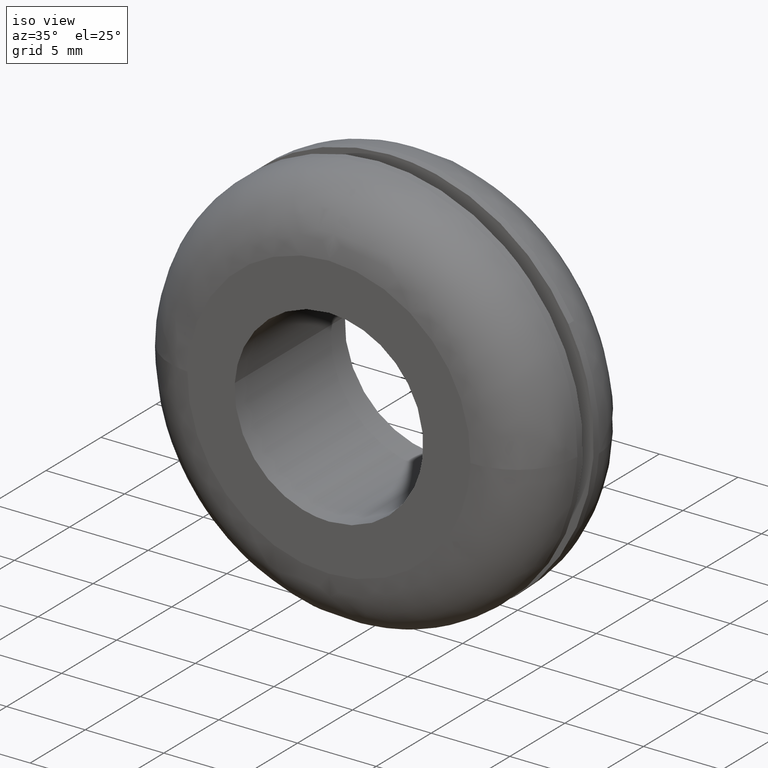
[diagram: clean part render]
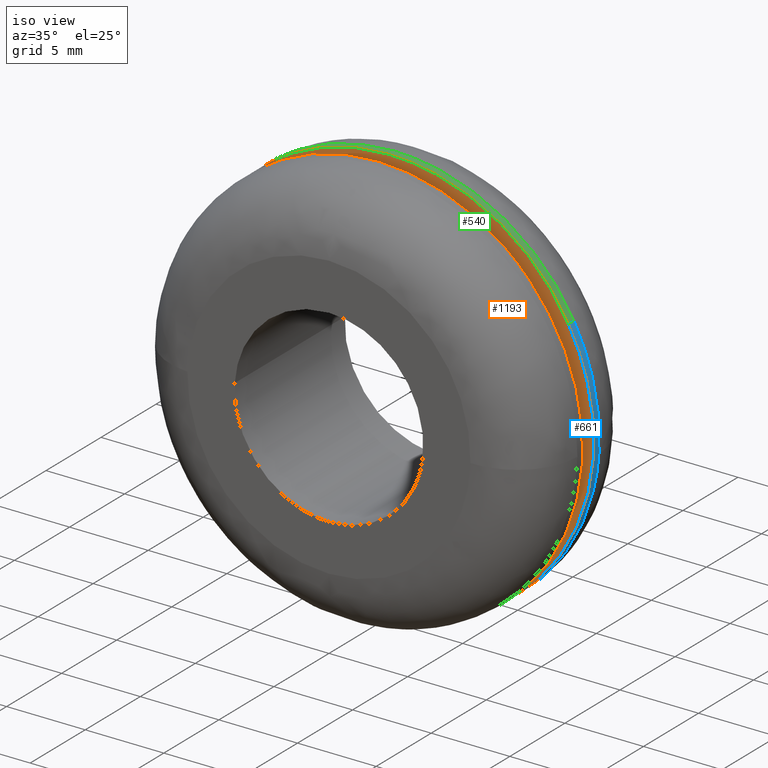
[diagram: same view with three faces highlighted in distinct colors, each labeled with its STEP entity id]
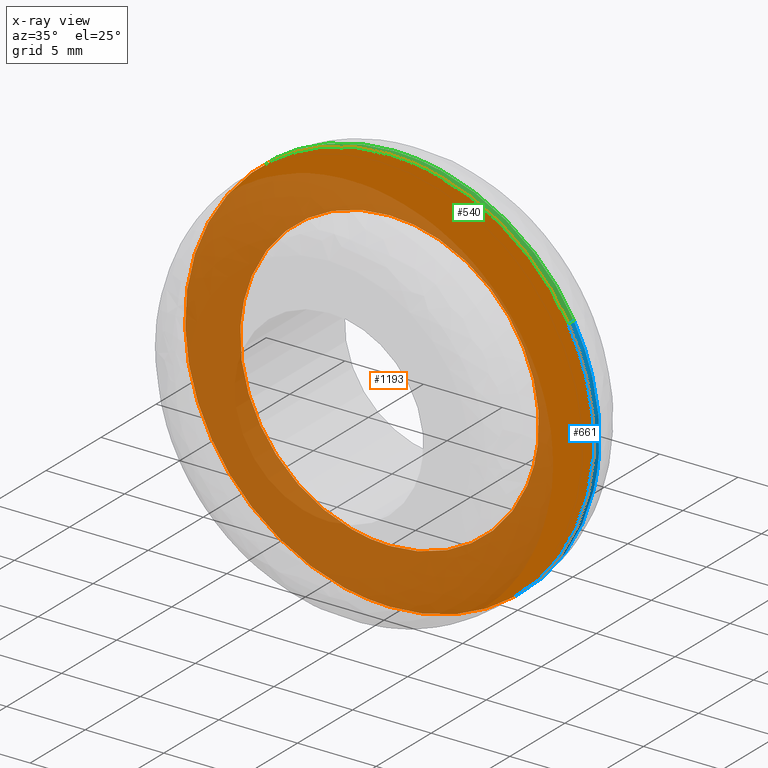
[diagram: x-ray of the same camera — body ghosted, the three highlighted faces saturated]
A machine part, iso view with three faces highlighted in distinct colors.
The next image is the same camera in x-ray (body ghosted, the three faces saturated) — at least one of them is partly hidden behind the body in this view.
Their STEP definitions:

[orange] entity #1193 — the highlighted face is a freeform B-spline surface patch.
#301=CARTESIAN_POINT('',(9.433591126934383,5.500000000000000,-1.121319958707903));
#302=VERTEX_POINT('',#301);
#308=CARTESIAN_POINT('',(0.0,5.500000000000000,9.500000000000000));
#309=VERTEX_POINT('',#308);
#310=CARTESIAN_POINT('',(9.433591126934383,5.500000000000000,-1.121319958707903));
#311=CARTESIAN_POINT('',(9.500000000000000,5.500000000000000,-0.562626473568023));
#312=CARTESIAN_POINT('',(9.500000000000000,5.500000000000000,-2.449213E-016));
#313=CARTESIAN_POINT('',(9.500000000000000,5.500000000000001,9.500000000000000));
#314=CARTESIAN_POINT('',(0.0,5.500000000000000,9.500000000000000));
#322=(BOUNDED_CURVE()B_SPLINE_CURVE(2,(#310,#311,#312,#313,#314),.UNSPECIFIED.,.F.,.U.)B_SPLINE_CURVE_WITH_KNOTS((3,2,3),(0.229562567937482,0.250000000000000,0.500000000000000),.UNSPECIFIED.)CURVE()GEOMETRIC_REPRESENTATION_ITEM()RATIONAL_B_SPLINE_CURVE((0.956026939258635,0.976056058955711,1.0,0.707106781186548,1.0))REPRESENTATION_ITEM(''));
#323=EDGE_CURVE('',#302,#309,#322,.T.);
#325=CARTESIAN_POINT('',(-9.482281025216306,5.500000000000000,0.579953928144975));
#326=VERTEX_POINT('',#325);
#327=CARTESIAN_POINT('',(0.0,5.500000000000000,9.500000000000000));
#328=CARTESIAN_POINT('',(-8.936714431606257,5.499999999999999,9.500000000000000));
#329=CARTESIAN_POINT('',(-9.482281025216306,5.500000000000000,0.579953928144975));
#337=(BOUNDED_CURVE()B_SPLINE_CURVE(2,(#327,#328,#329),.UNSPECIFIED.,.F.,.U.)B_SPLINE_CURVE_WITH_KNOTS((3,3),(0.500000000000000,0.739333093212004),.UNSPECIFIED.)CURVE()GEOMETRIC_REPRESENTATION_ITEM()RATIONAL_B_SPLINE_CURVE((1.0,0.719603839842224,0.976072322367080))REPRESENTATION_ITEM(''));
#338=EDGE_CURVE('',#309,#326,#337,.T.);
#412=CARTESIAN_POINT('',(0.0,5.500000000000000,-9.500000000000000));
#413=VERTEX_POINT('',#412);
#414=CARTESIAN_POINT('',(-9.482281025216306,5.500000000000000,0.579953928144975));
#415=CARTESIAN_POINT('',(-9.500000000000000,5.500000000000000,0.290247642528265));
#416=CARTESIAN_POINT('',(-9.500000000000000,5.500000000000000,-2.449213E-016));
#417=CARTESIAN_POINT('',(-9.500000000000000,5.500000000000001,-9.500000000000000));
#418=CARTESIAN_POINT('',(0.0,5.500000000000000,-9.500000000000000));
#426=(BOUNDED_CURVE()B_SPLINE_CURVE(2,(#414,#415,#416,#417,#418),.UNSPECIFIED.,.F.,.U.)B_SPLINE_CURVE_WITH_KNOTS((3,2,3),(0.739333093212004,0.750000000000000,1.0),.UNSPECIFIED.)CURVE()GEOMETRIC_REPRESENTATION_ITEM()RATIONAL_B_SPLINE_CURVE((0.976072322367080,0.987502941344323,1.0,0.707106781186548,1.0))REPRESENTATION_ITEM(''));
#427=EDGE_CURVE('',#326,#413,#426,.T.);
#429=CARTESIAN_POINT('',(0.0,5.500000000000000,-9.500000000000000));
#430=CARTESIAN_POINT('',(8.437662743830138,5.499999999999999,-9.499999999999998));
#431=CARTESIAN_POINT('',(9.433591126934383,5.500000000000000,-1.121319958707903));
#439=(BOUNDED_CURVE()B_SPLINE_CURVE(2,(#429,#430,#431),.UNSPECIFIED.,.F.,.U.)B_SPLINE_CURVE_WITH_KNOTS((3,3),(0.0,0.229562567937482),.UNSPECIFIED.)CURVE()GEOMETRIC_REPRESENTATION_ITEM()RATIONAL_B_SPLINE_CURVE((1.0,0.731050722230837,0.956026939258634))REPRESENTATION_ITEM(''));
#440=EDGE_CURVE('',#413,#302,#439,.T.);
#496=CARTESIAN_POINT('',(-8.782672184095720,5.500000000000000,9.584605850357686));
#497=VERTEX_POINT('',#496);
#503=CARTESIAN_POINT('',(0.0,5.500000000000000,13.0));
#504=VERTEX_POINT('',#503);
#505=CARTESIAN_POINT('',(0.0,5.500000000000000,13.0));
#506=CARTESIAN_POINT('',(-5.055422710082569,5.500000000000000,13.000000000000002));
#507=CARTESIAN_POINT('',(-8.782672184095720,5.500000000000000,9.584605850357686));
#515=(BOUNDED_CURVE()B_SPLINE_CURVE(2,(#505,#506,#507),.UNSPECIFIED.,.F.,.U.)B_SPLINE_CURVE_WITH_KNOTS((3,3),(0.500000000000000,0.618415192864190),.UNSPECIFIED.)CURVE()GEOMETRIC_REPRESENTATION_ITEM()RATIONAL_B_SPLINE_CURVE((1.0,0.861267972022367,0.853959782840026))REPRESENTATION_ITEM(''));
#516=EDGE_CURVE('',#504,#497,#515,.T.);
#518=CARTESIAN_POINT('',(11.374304629129410,5.499999999999999,6.294854581621429));
#519=VERTEX_POINT('',#518);
#520=CARTESIAN_POINT('',(11.374304629129410,5.499999999999999,6.294854581621429));
#521=CARTESIAN_POINT('',(7.663491816078668,5.500000000000000,13.000000000000002));
#522=CARTESIAN_POINT('',(0.0,5.500000000000000,13.0));
#530=(BOUNDED_CURVE()B_SPLINE_CURVE(2,(#520,#521,#522),.UNSPECIFIED.,.F.,.U.)B_SPLINE_CURVE_WITH_KNOTS((3,3),(0.332484262755645,0.500000000000000),.UNSPECIFIED.)CURVE()GEOMETRIC_REPRESENTATION_ITEM()RATIONAL_B_SPLINE_CURVE((0.870495158345373,0.803743106066369,1.0))REPRESENTATION_ITEM(''));
#531=EDGE_CURVE('',#519,#504,#530,.T.);
#581=CARTESIAN_POINT('',(0.0,5.500000000000000,-13.0));
#582=VERTEX_POINT('',#581);
#583=CARTESIAN_POINT('',(0.0,5.500000000000000,-13.0));
#584=CARTESIAN_POINT('',(13.0,5.500000000000000,-13.0));
#585=CARTESIAN_POINT('',(13.0,5.500000000000000,-2.449213E-016));
#586=CARTESIAN_POINT('',(13.0,5.499999999999999,3.357351555509877));
#587=CARTESIAN_POINT('',(11.374304629129410,5.499999999999999,6.294854581621429));
#595=(BOUNDED_CURVE()B_SPLINE_CURVE(2,(#583,#584,#585,#586,#587),.UNSPECIFIED.,.F.,.U.)B_SPLINE_CURVE_WITH_KNOTS((3,2,3),(0.0,0.250000000000000,0.332484262755645),.UNSPECIFIED.)CURVE()GEOMETRIC_REPRESENTATION_ITEM()RATIONAL_B_SPLINE_CURVE((1.0,0.707106781186547,1.0,0.903363675120178,0.870495158345373))REPRESENTATION_ITEM(''));
#596=EDGE_CURVE('',#582,#519,#595,.T.);
#598=CARTESIAN_POINT('',(-8.782672184095720,5.500000000000000,9.584605850357686));
#599=CARTESIAN_POINT('',(-13.000000000000002,5.499999999999999,5.720137735199792));
#600=CARTESIAN_POINT('',(-13.0,5.500000000000000,-2.449213E-016));
#601=CARTESIAN_POINT('',(-13.0,5.500000000000000,-13.0));
#602=CARTESIAN_POINT('',(0.0,5.500000000000000,-13.0));
#610=(BOUNDED_CURVE()B_SPLINE_CURVE(2,(#598,#599,#600,#601,#602),.UNSPECIFIED.,.F.,.U.)B_SPLINE_CURVE_WITH_KNOTS((3,2,3),(0.618415192864190,0.750000000000000,1.0),.UNSPECIFIED.)CURVE()GEOMETRIC_REPRESENTATION_ITEM()RATIONAL_B_SPLINE_CURVE((0.853959782840026,0.845838809164181,1.0,0.707106781186547,1.0))REPRESENTATION_ITEM(''));
#611=EDGE_CURVE('',#497,#582,#610,.T.);
#1176=CARTESIAN_POINT('',(-14.292782182057501,5.500000000000000,-14.298699949606950));
#1177=CARTESIAN_POINT('',(-14.292782182057501,5.500000000000000,14.298700646981301));
#1178=CARTESIAN_POINT('',(14.295413142998809,5.500000000000000,-14.298699949606950));
#1179=CARTESIAN_POINT('',(14.295413142998809,5.500000000000000,14.298700646981301));
#1180=B_SPLINE_SURFACE_WITH_KNOTS('',1,1,((#1176,#1178),(#1177,#1179)),.UNSPECIFIED.,.F.,.F.,.U.,(2,2),(2,2),(0.0,28.597400596588251),(0.0,28.588195325056311),.UNSPECIFIED.);
#1181=ORIENTED_EDGE('',*,*,#596,.T.);
#1182=ORIENTED_EDGE('',*,*,#531,.T.);
#1183=ORIENTED_EDGE('',*,*,#516,.T.);
#1184=ORIENTED_EDGE('',*,*,#611,.T.);
#1185=EDGE_LOOP('',(#1181,#1182,#1183,#1184));
#1186=FACE_OUTER_BOUND('',#1185,.T.);
#1187=ORIENTED_EDGE('',*,*,#338,.F.);
#1188=ORIENTED_EDGE('',*,*,#323,.F.);
#1189=ORIENTED_EDGE('',*,*,#440,.F.);
#1190=ORIENTED_EDGE('',*,*,#427,.F.);
#1191=EDGE_LOOP('',(#1187,#1188,#1189,#1190));
#1192=FACE_BOUND('',#1191,.T.);
#1193=ADVANCED_FACE('',(#1186,#1192),#1180,.F.);

[blue] entity #661 — the highlighted face is a freeform B-spline surface patch.
#464=CARTESIAN_POINT('',(11.374304720858300,5.999994954303111,6.294854415866223));
#465=VERTEX_POINT('',#464);
#481=CARTESIAN_POINT('',(-8.782672170068333,5.999996391977601,9.584605863207582));
#482=VERTEX_POINT('',#481);
#496=CARTESIAN_POINT('',(-8.782672184095720,5.500000000000000,9.584605850357686));
#497=VERTEX_POINT('',#496);
#498=CARTESIAN_POINT('',(-8.782672170068333,5.999996391977601,9.584605863207582));
#499=CARTESIAN_POINT('',(-8.782672184095720,5.500000000000000,9.584605850357686));
#500=QUASI_UNIFORM_CURVE('',1,(#498,#499),.UNSPECIFIED.,.F.,.U.);
#501=EDGE_CURVE('',#482,#497,#500,.T.);
#518=CARTESIAN_POINT('',(11.374304629129410,5.499999999999999,6.294854581621429));
#519=VERTEX_POINT('',#518);
#533=CARTESIAN_POINT('',(11.374304720858300,5.999994954303111,6.294854415866223));
#534=CARTESIAN_POINT('',(11.374304629129410,5.499999999999999,6.294854581621429));
#535=QUASI_UNIFORM_CURVE('',1,(#533,#534),.UNSPECIFIED.,.F.,.U.);
#536=EDGE_CURVE('',#465,#519,#535,.T.);
#541=CARTESIAN_POINT('',(-8.782672699003580,6.012500000000000,9.584605378531608));
#542=CARTESIAN_POINT('',(-18.367278077535193,6.012499999999999,0.801932679528027));
#543=CARTESIAN_POINT('',(-9.584605378531608,6.012500000000000,-8.782672699003580));
#544=CARTESIAN_POINT('',(-0.801932679528027,6.012499999999999,-18.367278077535193));
#545=CARTESIAN_POINT('',(8.782672699003580,6.012500000000000,-9.584605378531608));
#546=CARTESIAN_POINT('',(16.333327816270327,6.012500000000000,-2.665704710325894));
#547=CARTESIAN_POINT('',(11.374303556760694,6.012499999999999,6.294856519306929));
#548=CARTESIAN_POINT('',(-8.782672699003580,5.487187499999999,9.584605378531608));
#549=CARTESIAN_POINT('',(-18.367278077535193,5.487187500000000,0.801932679528027));
#550=CARTESIAN_POINT('',(-9.584605378531608,5.487187499999999,-8.782672699003580));
#551=CARTESIAN_POINT('',(-0.801932679528027,5.487187500000000,-18.367278077535193));
#552=CARTESIAN_POINT('',(8.782672699003580,5.487187499999999,-9.584605378531608));
#553=CARTESIAN_POINT('',(16.333327816270327,5.487187499999999,-2.665704710325894));
#554=CARTESIAN_POINT('',(11.374303556760694,5.487187499999998,6.294856519306929));
#562=(BOUNDED_SURFACE()B_SPLINE_SURFACE(2,1,((#541,#548),(#542,#549),(#543,#550),(#544,#551),(#545,#552),(#546,#553),(#547,#554)),.UNSPECIFIED.,.F.,.F.,.U.)B_SPLINE_SURFACE_WITH_KNOTS((3,2,2,3),(2,2),(0.0,21.539105243400940,43.078210486801872,61.171058891258653),(0.0,1.0),.UNSPECIFIED.)GEOMETRIC_REPRESENTATION_ITEM()RATIONAL_B_SPLINE_SURFACE(((1.0,1.0),(0.707106781186548,0.707106781186548),(1.0,1.0),(0.707106781186548,0.707106781186548),(1.0,1.0),(0.753969696196700,0.753969696196700),(0.921270302782944,0.921270302782944)))REPRESENTATION_ITEM('')SURFACE());
#563=CARTESIAN_POINT('',(12.968353783879341,5.999992422170896,-0.906531927605974));
#564=VERTEX_POINT('',#563);
#565=CARTESIAN_POINT('',(12.968353783879333,5.999992422170896,-0.906531927605974));
#566=CARTESIAN_POINT('',(12.999999999985908,5.999992545515316,-0.453818334305598));
#567=CARTESIAN_POINT('',(12.999999999986160,5.999992677782925,9.687914E-013));
#568=CARTESIAN_POINT('',(12.999999999988002,5.999993656299678,3.357351454468332));
#569=CARTESIAN_POINT('',(11.374304720858298,5.999994954303111,6.294854415866223));
#577=(BOUNDED_CURVE()B_SPLINE_CURVE(2,(#565,#566,#567,#568,#569),.UNSPECIFIED.,.F.,.U.)B_SPLINE_CURVE_WITH_KNOTS((3,2,3),(0.237833691082226,0.250000000000000,0.332484260513103),.UNSPECIFIED.)CURVE()GEOMETRIC_REPRESENTATION_ITEM()RATIONAL_B_SPLINE_CURVE((0.972879886004556,0.985746282479977,1.0,0.903363677747479,0.870495160132599))REPRESENTATION_ITEM(''));
#578=EDGE_CURVE('',#564,#465,#577,.T.);
#579=ORIENTED_EDGE('',*,*,#578,.T.);
#580=ORIENTED_EDGE('',*,*,#536,.T.);
#581=CARTESIAN_POINT('',(0.0,5.500000000000000,-13.0));
#582=VERTEX_POINT('',#581);
#583=CARTESIAN_POINT('',(0.0,5.500000000000000,-13.0));
#584=CARTESIAN_POINT('',(13.0,5.500000000000000,-13.0));
#585=CARTESIAN_POINT('',(13.0,5.500000000000000,-2.449213E-016));
#586=CARTESIAN_POINT('',(13.0,5.499999999999999,3.357351555509877));
#587=CARTESIAN_POINT('',(11.374304629129410,5.499999999999999,6.294854581621429));
#595=(BOUNDED_CURVE()B_SPLINE_CURVE(2,(#583,#584,#585,#586,#587),.UNSPECIFIED.,.F.,.U.)B_SPLINE_CURVE_WITH_KNOTS((3,2,3),(0.0,0.250000000000000,0.332484262755645),.UNSPECIFIED.)CURVE()GEOMETRIC_REPRESENTATION_ITEM()RATIONAL_B_SPLINE_CURVE((1.0,0.707106781186547,1.0,0.903363675120178,0.870495158345373))REPRESENTATION_ITEM(''));
#596=EDGE_CURVE('',#582,#519,#595,.T.);
#597=ORIENTED_EDGE('',*,*,#596,.F.);
#598=CARTESIAN_POINT('',(-8.782672184095720,5.500000000000000,9.584605850357686));
#599=CARTESIAN_POINT('',(-13.000000000000002,5.499999999999999,5.720137735199792));
#600=CARTESIAN_POINT('',(-13.0,5.500000000000000,-2.449213E-016));
#601=CARTESIAN_POINT('',(-13.0,5.500000000000000,-13.0));
#602=CARTESIAN_POINT('',(0.0,5.500000000000000,-13.0));
#610=(BOUNDED_CURVE()B_SPLINE_CURVE(2,(#598,#599,#600,#601,#602),.UNSPECIFIED.,.F.,.U.)B_SPLINE_CURVE_WITH_KNOTS((3,2,3),(0.618415192864190,0.750000000000000,1.0),.UNSPECIFIED.)CURVE()GEOMETRIC_REPRESENTATION_ITEM()RATIONAL_B_SPLINE_CURVE((0.853959782840026,0.845838809164181,1.0,0.707106781186547,1.0))REPRESENTATION_ITEM(''));
#611=EDGE_CURVE('',#497,#582,#610,.T.);
#612=ORIENTED_EDGE('',*,*,#611,.F.);
#613=ORIENTED_EDGE('',*,*,#501,.F.);
#614=CARTESIAN_POINT('',(-12.998973683911879,5.999992378941576,0.163349822507249));
#615=VERTEX_POINT('',#614);
#616=CARTESIAN_POINT('',(-8.782672170068333,5.999996391977600,9.584605863207582));
#617=CARTESIAN_POINT('',(-12.928319674163452,5.999994047958732,5.785820660463391));
#618=CARTESIAN_POINT('',(-12.998973683911885,5.999992378941576,0.163349822507249));
#626=(BOUNDED_CURVE()B_SPLINE_CURVE(2,(#616,#617,#618),.UNSPECIFIED.,.F.,.U.)B_SPLINE_CURVE_WITH_KNOTS((3,3),(0.618415192422449,0.747784413572241),.UNSPECIFIED.)CURVE()GEOMETRIC_REPRESENTATION_ITEM()RATIONAL_B_SPLINE_CURVE((0.853959782894552,0.845975547231104,0.994854566429976))REPRESENTATION_ITEM(''));
#627=EDGE_CURVE('',#482,#615,#626,.T.);
#628=ORIENTED_EDGE('',*,*,#627,.T.);
#629=CARTESIAN_POINT('',(0.0,6.0,-13.0));
#630=VERTEX_POINT('',#629);
#631=CARTESIAN_POINT('',(-12.998973683911885,5.999992378941576,0.163349822507249));
#632=CARTESIAN_POINT('',(-12.999999999982622,5.999992402583911,0.081678135391322));
#633=CARTESIAN_POINT('',(-12.999999999982681,5.999992426525213,-2.182001E-013));
#634=CARTESIAN_POINT('',(-12.999999999991394,5.999996237054426,-13.000000000000108));
#635=CARTESIAN_POINT('',(0.0,6.0,-13.0));
#643=(BOUNDED_CURVE()B_SPLINE_CURVE(2,(#631,#632,#633,#634,#635),.UNSPECIFIED.,.F.,.U.)B_SPLINE_CURVE_WITH_KNOTS((3,2,3),(0.747784413572241,0.750000000000000,1.0),.UNSPECIFIED.)CURVE()GEOMETRIC_REPRESENTATION_ITEM()RATIONAL_B_SPLINE_CURVE((0.994854566429976,0.997404279038457,1.0,0.707106781186547,1.0))REPRESENTATION_ITEM(''));
#644=EDGE_CURVE('',#615,#630,#643,.T.);
#645=ORIENTED_EDGE('',*,*,#644,.T.);
#646=CARTESIAN_POINT('',(0.0,6.0,-13.0));
#647=CARTESIAN_POINT('',(12.122979335763739,5.999996211085450,-12.999999999999499));
#648=CARTESIAN_POINT('',(12.968353783879333,5.999992422170896,-0.906531927605974));
#656=(BOUNDED_CURVE()B_SPLINE_CURVE(2,(#646,#647,#648),.UNSPECIFIED.,.F.,.U.)B_SPLINE_CURVE_WITH_KNOTS((3,3),(0.0,0.237833691082226),.UNSPECIFIED.)CURVE()GEOMETRIC_REPRESENTATION_ITEM()RATIONAL_B_SPLINE_CURVE((1.0,0.721360498706570,0.972879886004556))REPRESENTATION_ITEM(''));
#657=EDGE_CURVE('',#630,#564,#656,.T.);
#658=ORIENTED_EDGE('',*,*,#657,.T.);
#659=EDGE_LOOP('',(#579,#580,#597,#612,#613,#628,#645,#658));
#660=FACE_OUTER_BOUND('',#659,.T.);
#661=ADVANCED_FACE('',(#660),#562,.T.);

[green] entity #540 — the highlighted face is a freeform B-spline surface patch.
#446=CARTESIAN_POINT('',(11.374303556760694,6.012499999999999,6.294856519306929));
#447=CARTESIAN_POINT('',(10.627105983358849,6.012500000000000,7.644982926585762));
#448=CARTESIAN_POINT('',(9.584605378531608,6.012500000000000,8.782672699003580));
#449=CARTESIAN_POINT('',(0.801932679528027,6.012499999999999,18.367278077535193));
#450=CARTESIAN_POINT('',(-8.782672699003580,6.012500000000000,9.584605378531608));
#451=CARTESIAN_POINT('',(11.374303556760694,5.487187499999998,6.294856519306929));
#452=CARTESIAN_POINT('',(10.627105983358849,5.487187499999999,7.644982926585762));
#453=CARTESIAN_POINT('',(9.584605378531608,5.487187499999999,8.782672699003580));
#454=CARTESIAN_POINT('',(0.801932679528027,5.487187500000000,18.367278077535193));
#455=CARTESIAN_POINT('',(-8.782672699003580,5.487187499999999,9.584605378531608));
#463=(BOUNDED_SURFACE()B_SPLINE_SURFACE(2,1,((#446,#451),(#447,#452),(#448,#453),(#449,#454),(#450,#455)),.UNSPECIFIED.,.F.,.F.,.U.)B_SPLINE_SURFACE_WITH_KNOTS((3,2,3),(2,2),(0.0,3.446256838944155,24.985362082345091),(0.0,1.0),.UNSPECIFIED.)GEOMETRIC_REPRESENTATION_ITEM()RATIONAL_B_SPLINE_SURFACE(((0.921270302782944,0.921270302782944),(0.953137084989848,0.953137084989848),(1.0,1.0),(0.707106781186548,0.707106781186548),(1.0,1.0)))REPRESENTATION_ITEM('')SURFACE());
#464=CARTESIAN_POINT('',(11.374304720858300,5.999994954303111,6.294854415866223));
#465=VERTEX_POINT('',#464);
#466=CARTESIAN_POINT('',(0.0,6.0,13.0));
#467=VERTEX_POINT('',#466);
#468=CARTESIAN_POINT('',(11.374304720858298,5.999994954303111,6.294854415866223));
#469=CARTESIAN_POINT('',(7.663491943716938,5.999997917120351,13.000000000000275));
#470=CARTESIAN_POINT('',(0.0,6.0,13.0));
#478=(BOUNDED_CURVE()B_SPLINE_CURVE(2,(#468,#469,#470),.UNSPECIFIED.,.F.,.U.)B_SPLINE_CURVE_WITH_KNOTS((3,3),(0.332484260513103,0.500000000000000),.UNSPECIFIED.)CURVE()GEOMETRIC_REPRESENTATION_ITEM()RATIONAL_B_SPLINE_CURVE((0.870495160132599,0.803743103439068,1.0))REPRESENTATION_ITEM(''));
#479=EDGE_CURVE('',#465,#467,#478,.T.);
#480=ORIENTED_EDGE('',*,*,#479,.T.);
#481=CARTESIAN_POINT('',(-8.782672170068333,5.999996391977601,9.584605863207582));
#482=VERTEX_POINT('',#481);
#483=CARTESIAN_POINT('',(0.0,6.0,13.0));
#484=CARTESIAN_POINT('',(-5.055422688182448,5.999998499428219,12.999999999999956));
#485=CARTESIAN_POINT('',(-8.782672170068333,5.999996391977600,9.584605863207582));
#493=(BOUNDED_CURVE()B_SPLINE_CURVE(2,(#483,#484,#485),.UNSPECIFIED.,.F.,.U.)B_SPLINE_CURVE_WITH_KNOTS((3,3),(0.500000000000000,0.618415192422450),.UNSPECIFIED.)CURVE()GEOMETRIC_REPRESENTATION_ITEM()RATIONAL_B_SPLINE_CURVE((1.0,0.861267972539898,0.853959782894552))REPRESENTATION_ITEM(''));
#494=EDGE_CURVE('',#467,#482,#493,.T.);
#495=ORIENTED_EDGE('',*,*,#494,.T.);
#496=CARTESIAN_POINT('',(-8.782672184095720,5.500000000000000,9.584605850357686));
#497=VERTEX_POINT('',#496);
#498=CARTESIAN_POINT('',(-8.782672170068333,5.999996391977601,9.584605863207582));
#499=CARTESIAN_POINT('',(-8.782672184095720,5.500000000000000,9.584605850357686));
#500=QUASI_UNIFORM_CURVE('',1,(#498,#499),.UNSPECIFIED.,.F.,.U.);
#501=EDGE_CURVE('',#482,#497,#500,.T.);
#502=ORIENTED_EDGE('',*,*,#501,.T.);
#503=CARTESIAN_POINT('',(0.0,5.500000000000000,13.0));
#504=VERTEX_POINT('',#503);
#505=CARTESIAN_POINT('',(0.0,5.500000000000000,13.0));
#506=CARTESIAN_POINT('',(-5.055422710082569,5.500000000000000,13.000000000000002));
#507=CARTESIAN_POINT('',(-8.782672184095720,5.500000000000000,9.584605850357686));
#515=(BOUNDED_CURVE()B_SPLINE_CURVE(2,(#505,#506,#507),.UNSPECIFIED.,.F.,.U.)B_SPLINE_CURVE_WITH_KNOTS((3,3),(0.500000000000000,0.618415192864190),.UNSPECIFIED.)CURVE()GEOMETRIC_REPRESENTATION_ITEM()RATIONAL_B_SPLINE_CURVE((1.0,0.861267972022367,0.853959782840026))REPRESENTATION_ITEM(''));
#516=EDGE_CURVE('',#504,#497,#515,.T.);
#517=ORIENTED_EDGE('',*,*,#516,.F.);
#518=CARTESIAN_POINT('',(11.374304629129410,5.499999999999999,6.294854581621429));
#519=VERTEX_POINT('',#518);
#520=CARTESIAN_POINT('',(11.374304629129410,5.499999999999999,6.294854581621429));
#521=CARTESIAN_POINT('',(7.663491816078668,5.500000000000000,13.000000000000002));
#522=CARTESIAN_POINT('',(0.0,5.500000000000000,13.0));
#530=(BOUNDED_CURVE()B_SPLINE_CURVE(2,(#520,#521,#522),.UNSPECIFIED.,.F.,.U.)B_SPLINE_CURVE_WITH_KNOTS((3,3),(0.332484262755645,0.500000000000000),.UNSPECIFIED.)CURVE()GEOMETRIC_REPRESENTATION_ITEM()RATIONAL_B_SPLINE_CURVE((0.870495158345373,0.803743106066369,1.0))REPRESENTATION_ITEM(''));
#531=EDGE_CURVE('',#519,#504,#530,.T.);
#532=ORIENTED_EDGE('',*,*,#531,.F.);
#533=CARTESIAN_POINT('',(11.374304720858300,5.999994954303111,6.294854415866223));
#534=CARTESIAN_POINT('',(11.374304629129410,5.499999999999999,6.294854581621429));
#535=QUASI_UNIFORM_CURVE('',1,(#533,#534),.UNSPECIFIED.,.F.,.U.);
#536=EDGE_CURVE('',#465,#519,#535,.T.);
#537=ORIENTED_EDGE('',*,*,#536,.F.);
#538=EDGE_LOOP('',(#480,#495,#502,#517,#532,#537));
#539=FACE_OUTER_BOUND('',#538,.T.);
#540=ADVANCED_FACE('',(#539),#463,.T.);